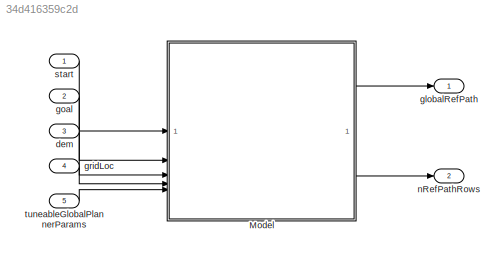
MODEL slx_34d416359c2d
KIND model
CONFIG AbsTol = auto
CONFIG EnableMultiTasking = off
CONFIG FixedStep = auto
CONFIG MaxStep = auto
CONFIG MinStep = auto
CONFIG RelTol = 1e-3
CONFIG SampleTimeConstraint = Unconstrained
CONFIG SolverName = FixedStepAuto
CONFIG StartTime = 0.0
CONFIG StopTime = 10.0
BLOCK [ModelReference] Model
  ModelNameDialog = TerrainAwarePlanner.slx
  ModelReferenceVersion = 2.0
BLOCK [Inport] dem
  Port = 3
BLOCK [Outport] globalRefPath
  PortDimensions = [maxRefPathLen 3]
BLOCK [Inport] goal
  Port = 2
BLOCK [Inport] gridLoc
  Port = 4
BLOCK [Outport] nRefPathRows
  Port = 2
BLOCK [Inport] start
BLOCK [Inport] tuneableGlobalPlannerParams
  OutDataTypeStr = Bus: fsp_tunable_bus
  Port = 5
LINE Model:1 -> globalRefPath:1
LINE Model:2 -> nRefPathRows:1
LINE dem:1 -> Model:3
LINE goal:1 -> Model:2
LINE gridLoc:1 -> Model:4
LINE start:1 -> Model:1
LINE tuneableGlobalPlannerParams:1 -> Model:5
